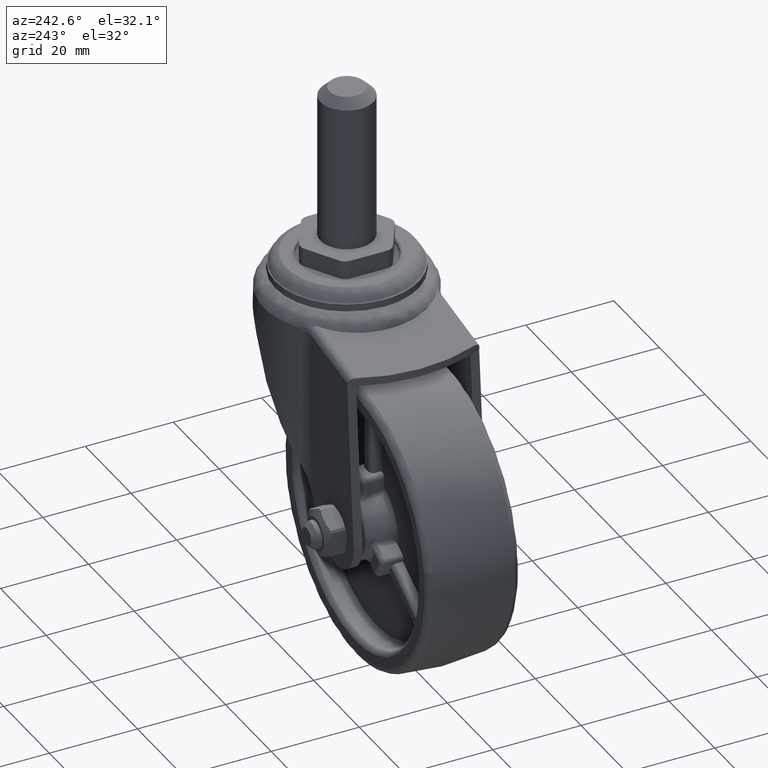
[diagram: clean part render]
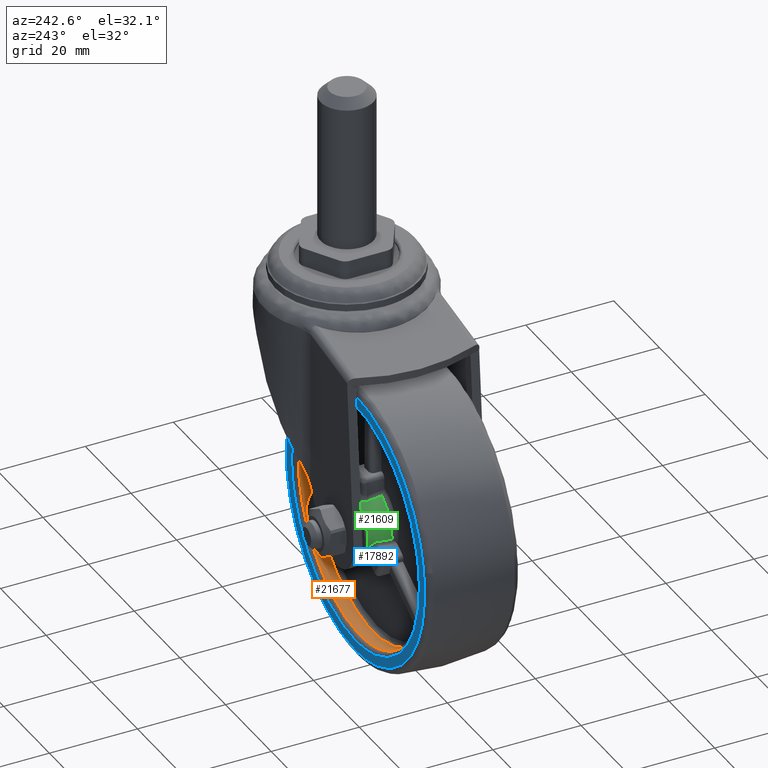
[diagram: same view with three faces highlighted in distinct colors, each labeled with its STEP entity id]
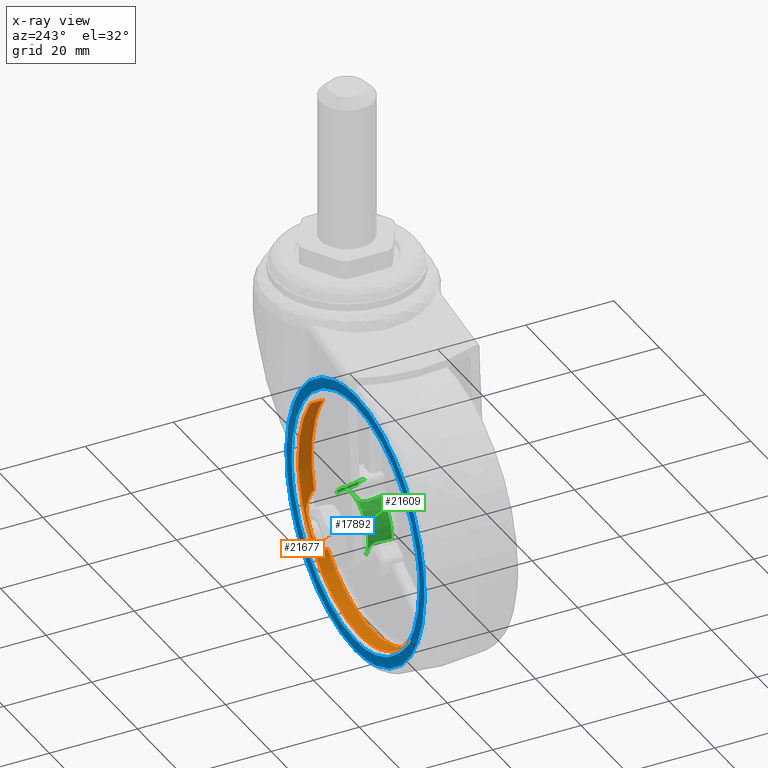
[diagram: x-ray of the same camera — body ghosted, the three highlighted faces saturated]
A machine part, auxiliary view with three faces highlighted in distinct colors.
The next image is the same camera in x-ray (body ghosted, the three faces saturated) — at least one of them is partly hidden behind the body in this view.
Their STEP definitions:

[orange] entity #21677 — the highlighted face is a freeform B-spline surface patch.
#18010=CARTESIAN_POINT('',(-21.729602883362020,9.500000002187065,-16.025740498690709));
#18011=VERTEX_POINT('',#18010);
#18027=CARTESIAN_POINT('',(0.0,9.500000000000000,-27.0));
#18028=VERTEX_POINT('',#18027);
#18029=CARTESIAN_POINT('',(-21.729602883362020,9.500000002187065,-16.025740498690705));
#18030=CARTESIAN_POINT('',(-13.636006517276037,9.500000000906182,-26.999999999999950));
#18031=CARTESIAN_POINT('',(0.0,9.500000000000000,-27.0));
#18039=(BOUNDED_CURVE()B_SPLINE_CURVE(2,(#18029,#18030,#18031),.UNSPECIFIED.,.F.,.U.)B_SPLINE_CURVE_WITH_KNOTS((3,3),(0.852333250933446,1.0),.UNSPECIFIED.)CURVE()GEOMETRIC_REPRESENTATION_ITEM()RATIONAL_B_SPLINE_CURVE((0.858368850471082,0.826997642216715,1.0))REPRESENTATION_ITEM(''));
#18040=EDGE_CURVE('',#18011,#18028,#18039,.T.);
#18042=CARTESIAN_POINT('',(26.997868193501748,9.500000003678203,-0.339283076952813));
#18043=VERTEX_POINT('',#18042);
#18044=CARTESIAN_POINT('',(0.0,9.500000000000000,-27.0));
#18045=CARTESIAN_POINT('',(26.662822107396440,9.500000001839101,-26.999999999999996));
#18046=CARTESIAN_POINT('',(26.997868193501748,9.500000003678203,-0.339283076952813));
#18054=(BOUNDED_CURVE()B_SPLINE_CURVE(2,(#18044,#18045,#18046),.UNSPECIFIED.,.F.,.U.)B_SPLINE_CURVE_WITH_KNOTS((3,3),(0.0,0.247784295921062),.UNSPECIFIED.)CURVE()GEOMETRIC_REPRESENTATION_ITEM()RATIONAL_B_SPLINE_CURVE((1.0,0.709702639985021,0.994854295642479))REPRESENTATION_ITEM(''));
#18055=EDGE_CURVE('',#18028,#18043,#18054,.T.);
#18100=CARTESIAN_POINT('',(21.729603033525908,9.500000002203374,16.025740295080620));
#18101=VERTEX_POINT('',#18100);
#18102=CARTESIAN_POINT('',(26.997868193501748,9.500000003678203,-0.339283076952813));
#18103=CARTESIAN_POINT('',(26.999999999999996,9.500000003666738,-0.169648235832177));
#18104=CARTESIAN_POINT('',(26.999999999999989,9.500000003655128,-7.233833E-016));
#18105=CARTESIAN_POINT('',(26.999999999999915,9.500000003047468,8.879509805763906));
#18106=CARTESIAN_POINT('',(21.729603033525908,9.500000002203374,16.025740295080624));
#18114=(BOUNDED_CURVE()B_SPLINE_CURVE(2,(#18102,#18103,#18104,#18105,#18106),.UNSPECIFIED.,.F.,.U.)B_SPLINE_CURVE_WITH_KNOTS((3,2,3),(0.247784295921062,0.250000000000000,0.352333249511620),.UNSPECIFIED.)CURVE()GEOMETRIC_REPRESENTATION_ITEM()RATIONAL_B_SPLINE_CURVE((0.994854295642479,0.997404141201527,1.0,0.880109140635605,0.858368851075204))REPRESENTATION_ITEM(''));
#18115=EDGE_CURVE('',#18043,#18101,#18114,.T.);
#18604=CARTESIAN_POINT('',(-19.775754477459650,6.500000000000000,-18.382587816932499));
#18605=VERTEX_POINT('',#18604);
#18655=CARTESIAN_POINT('',(19.775746493644750,6.500000000000000,-18.382592607123751));
#18656=VERTEX_POINT('',#18655);
#18688=CARTESIAN_POINT('',(-19.775754477459650,6.500000000000000,-18.382587816932499));
#18689=CARTESIAN_POINT('',(-18.516913265081499,6.499999999999993,-19.737256627244530));
#18690=CARTESIAN_POINT('',(-16.243790912241899,6.500000000000008,-21.726908366354291));
#18691=CARTESIAN_POINT('',(-12.891242668102770,6.500000000000000,-23.792483002903779));
#18692=CARTESIAN_POINT('',(-9.849908411726331,6.499999999999989,-25.211811183754630));
#18693=CARTESIAN_POINT('',(-6.819981053291165,6.500000000000010,-26.197877950632169));
#18694=CARTESIAN_POINT('',(-3.239045934259169,6.499999999999991,-26.884405642690300));
#18695=CARTESIAN_POINT('',(0.695705631955457,6.500000000000040,-27.112195812597999));
#18696=CARTESIAN_POINT('',(4.848769515196429,6.499999999999861,-26.670475436309239));
#18697=CARTESIAN_POINT('',(8.319093552807333,6.500000000000409,-25.746993006795240));
#18698=CARTESIAN_POINT('',(11.552044385932270,6.499999999999756,-24.484061743049072));
#18699=CARTESIAN_POINT('',(15.474878219554220,6.500000000000252,-22.353343365267431));
#18700=CARTESIAN_POINT('',(18.280982030470451,6.499999999999909,-19.991398267899189));
#18701=CARTESIAN_POINT('',(19.775746493644750,6.500000000000000,-18.382592607123751));
#18702=B_SPLINE_CURVE_WITH_KNOTS('',3,(#18688,#18689,#18690,#18691,#18692,#18693,#18694,#18695,#18696,#18697,#18698,#18699,#18700,#18701),.UNSPECIFIED.,.F.,.U.,(4,1,1,1,1,1,1,1,1,1,1,4),(0.000000078928899,5.547751425199351,9.015131694738329,11.789036154244810,15.603136088926121,18.550398971588741,22.711194548025869,27.392135171767059,31.032892653931391,33.460048046666067,37.794256695975513,44.382238997541407),.UNSPECIFIED.);
#18703=EDGE_CURVE('',#18605,#18656,#18702,.T.);
#18752=CARTESIAN_POINT('',(24.314308815177551,9.0,-11.739437245463639));
#18753=VERTEX_POINT('',#18752);
#18767=CARTESIAN_POINT('',(25.807665603181150,7.0,-7.935011948771430));
#18768=VERTEX_POINT('',#18767);
#18796=CARTESIAN_POINT('',(24.314308815177551,9.0,-11.739437245463639));
#18797=CARTESIAN_POINT('',(24.399355218980400,9.000000000000004,-11.563292160299889));
#18798=CARTESIAN_POINT('',(24.481466017697240,8.983607666412324,-11.388345430880690));
#18799=CARTESIAN_POINT('',(24.600638036807691,8.938086873005625,-11.127342804351770));
#18800=CARTESIAN_POINT('',(24.639694319177028,8.919399489301833,-11.040581137132699));
#18801=CARTESIAN_POINT('',(24.716521885995359,8.875391763134990,-10.867498084407460));
#18802=CARTESIAN_POINT('',(24.754407984937391,8.849971205522101,-10.780906840890310));
#18803=CARTESIAN_POINT('',(24.938755386857029,8.708700494791364,-10.353602865272499));
#18804=CARTESIAN_POINT('',(25.070955416587012,8.550824701972886,-10.028012815873380));
#18805=CARTESIAN_POINT('',(25.222679369110750,8.315598230912480,-9.634498946607698));
#18806=CARTESIAN_POINT('',(25.252338427428501,8.266637154999668,-9.556476897060920));
#18807=CARTESIAN_POINT('',(25.310395721720489,8.165294126469151,-9.401633684380110));
#18808=CARTESIAN_POINT('',(25.338820277539700,8.112855889945795,-9.324738341141336));
#18809=CARTESIAN_POINT('',(25.421970146868819,7.951828717158793,-9.096682600035335));
#18810=CARTESIAN_POINT('',(25.474702192052099,7.839334756970777,-8.947830984093642));
#18811=CARTESIAN_POINT('',(25.575946242674231,7.607452488573166,-8.654195886318506));
#18812=CARTESIAN_POINT('',(25.624456924708010,7.488060711746101,-8.509414721846373));
#18813=CARTESIAN_POINT('',(25.694811045521330,7.306350593197275,-8.293517406220266));
#18814=CARTESIAN_POINT('',(25.729383293559120,7.214840722985306,-8.185886094907787));
#18815=CARTESIAN_POINT('',(25.763173013217521,7.122832293255115,-8.078387423804527));
#18816=CARTESIAN_POINT('',(25.779946684632709,7.076784227081213,-8.024632035429910));
#18817=CARTESIAN_POINT('',(25.785517776739539,7.061427823512048,-8.006712378722718));
#18818=CARTESIAN_POINT('',(25.796620236787081,7.030703090561548,-7.970869129579667));
#18819=CARTESIAN_POINT('',(25.802130216273760,7.015203882985929,-7.953015118432671));
#18820=CARTESIAN_POINT('',(25.807665603181150,7.0,-7.935011948771430));
#18821=B_SPLINE_CURVE_WITH_KNOTS('',3,(#18796,#18797,#18798,#18799,#18800,#18801,#18802,#18803,#18804,#18805,#18806,#18807,#18808,#18809,#18810,#18811,#18812,#18813,#18814,#18815,#18816,#18817,#18818,#18819,#18820),.UNSPECIFIED.,.F.,.U.,(4,2,2,2,2,2,2,2,2,1,2,2,4),(0.0,0.125000000000000,0.187500000000001,0.250000000000001,0.500000000000005,0.562500000000005,0.625000000000006,0.750000000000005,0.875000000000005,0.937500000000004,0.968750000000003,0.984375000000001,1.0),.UNSPECIFIED.);
#18822=EDGE_CURVE('',#18753,#18768,#18821,.T.);
#18844=CARTESIAN_POINT('',(22.323799195099799,9.0,-15.187099443174150));
#18845=VERTEX_POINT('',#18844);
#18861=CARTESIAN_POINT('',(22.323799195099809,9.0,-15.187099443174169));
#18862=CARTESIAN_POINT('',(23.446486003740581,9.0,-13.536841277099647));
#18863=CARTESIAN_POINT('',(24.314308815177551,9.0,-11.739437245463661));
#18871=(BOUNDED_CURVE()B_SPLINE_CURVE(2,(#18861,#18862,#18863),.UNSPECIFIED.,.F.,.U.)CURVE()GEOMETRIC_REPRESENTATION_ITEM()QUASI_UNIFORM_CURVE()RATIONAL_B_SPLINE_CURVE((1.0,0.997278790104865,1.0))REPRESENTATION_ITEM(''));
#18872=EDGE_CURVE('',#18845,#18753,#18871,.T.);
#18939=CARTESIAN_POINT('',(19.775746493644750,7.0,-18.382592607123751));
#18940=VERTEX_POINT('',#18939);
#18941=CARTESIAN_POINT('',(19.775746493644750,7.0,-18.382592607123751));
#18942=CARTESIAN_POINT('',(19.777270170167888,7.002036282938575,-18.380953458783420));
#18943=CARTESIAN_POINT('',(19.778793642879609,7.004072565856359,-18.379314121020911));
#18944=CARTESIAN_POINT('',(19.781840180680081,7.008145131650335,-18.376035066651369));
#18945=CARTESIAN_POINT('',(19.783532376566860,7.009888629423941,-18.374213266367509));
#18946=CARTESIAN_POINT('',(19.788390865808339,7.015512242728152,-18.368981209090212));
#18947=CARTESIAN_POINT('',(19.791593801458429,7.019329684852770,-18.365530164055141));
#18948=CARTESIAN_POINT('',(19.801199669578370,7.030782367243396,-18.355174804376130));
#18949=CARTESIAN_POINT('',(19.807582358942739,7.038451631034683,-18.348286880039289));
#18950=CARTESIAN_POINT('',(19.826720777657702,7.061456739943341,-18.327611934075971));
#18951=CARTESIAN_POINT('',(19.839457984750290,7.076807167980160,-18.313823286558161));
#18952=CARTESIAN_POINT('',(19.877636296851730,7.122837305745312,-18.272406835348281));
#18953=CARTESIAN_POINT('',(19.903039652717808,7.153504539307927,-18.244733331088121));
#18954=CARTESIAN_POINT('',(19.979157133070299,7.245340462239780,-18.161464941941180));
#18955=CARTESIAN_POINT('',(20.029776752504880,7.306347611588489,-18.105624752446140));
#18956=CARTESIAN_POINT('',(20.181580144033958,7.488059042325476,-17.936739527247031));
#18957=CARTESIAN_POINT('',(20.282712553291589,7.607453608902942,-17.822333744603942));
#18958=CARTESIAN_POINT('',(20.486391667297639,7.839339367189134,-17.587830360671720));
#18959=CARTESIAN_POINT('',(20.588936843483229,7.951834384106368,-17.467735258762250));
#18960=CARTESIAN_POINT('',(20.744865047462149,8.112861335635865,-17.281696593189970));
#18961=CARTESIAN_POINT('',(20.797246046749901,8.165299122510541,-17.218632711969580));
#18962=CARTESIAN_POINT('',(20.902315591180251,8.266641460812572,-17.090932229386130));
#18963=CARTESIAN_POINT('',(20.955055148856971,8.315602219014750,-17.026235825406669));
#18964=CARTESIAN_POINT('',(21.219986199604989,8.550827207452624,-16.698082732792368));
#18965=CARTESIAN_POINT('',(21.435855365556382,8.708702129388081,-16.420799772198919));
#18966=CARTESIAN_POINT('',(21.713737603107312,8.849972050085388,-16.047499223170099));
#18967=CARTESIAN_POINT('',(21.769784727002971,8.875392462414405,-15.971393490755309));
#18968=CARTESIAN_POINT('',(21.881265175427998,8.919399939216984,-15.818317774288120));
#18969=CARTESIAN_POINT('',(21.936874797078509,8.938087218152241,-15.741113428687150));
#18970=CARTESIAN_POINT('',(22.103323555632571,8.983607757218717,-15.507406792346160));
#18971=CARTESIAN_POINT('',(22.213776374727740,9.000000000000002,-15.348823852780979));
#18972=CARTESIAN_POINT('',(22.323799195099799,9.0,-15.187099443174150));
#18973=B_SPLINE_CURVE_WITH_KNOTS('',3,(#18941,#18942,#18943,#18944,#18945,#18946,#18947,#18948,#18949,#18950,#18951,#18952,#18953,#18954,#18955,#18956,#18957,#18958,#18959,#18960,#18961,#18962,#18963,#18964,#18965,#18966,#18967,#18968,#18969,#18970,#18971,#18972),.UNSPECIFIED.,.F.,.U.,(4,2,2,2,2,2,2,2,2,2,2,2,2,2,2,4),(0.0,0.001953125000000,0.003906250000001,0.007812500000000,0.015625000000001,0.031250000000000,0.062499999999999,0.125000000000000,0.249999999999999,0.374999999999998,0.437499999999997,0.499999999999997,0.749999999999997,0.812499999999998,0.874999999999999,1.0),.UNSPECIFIED.);
#18974=EDGE_CURVE('',#18940,#18845,#18973,.T.);
#20889=CARTESIAN_POINT('',(-19.775754477459650,7.0,-18.382587816932499));
#20890=VERTEX_POINT('',#20889);
#20891=CARTESIAN_POINT('',(-19.775754477459650,6.500000000000000,-18.382587816932499));
#20892=CARTESIAN_POINT('',(-19.775754477459650,7.0,-18.382587816932499));
#20893=QUASI_UNIFORM_CURVE('',1,(#20891,#20892),.UNSPECIFIED.,.F.,.U.);
#20894=EDGE_CURVE('',#18605,#20890,#20893,.T.);
#20987=CARTESIAN_POINT('',(19.775746493644750,6.500000000000000,-18.382592607123751));
#20988=CARTESIAN_POINT('',(19.775746493644750,7.0,-18.382592607123751));
#20989=QUASI_UNIFORM_CURVE('',1,(#20987,#20988),.UNSPECIFIED.,.F.,.U.);
#20990=EDGE_CURVE('',#18656,#18940,#20989,.T.);
#21023=CARTESIAN_POINT('',(25.807665603181150,6.500000000000000,-7.935011948771430));
#21024=VERTEX_POINT('',#21023);
#21025=CARTESIAN_POINT('',(25.807665603181150,6.500000000000000,-7.935011948771430));
#21026=CARTESIAN_POINT('',(25.807665603181150,7.0,-7.935011948771430));
#21027=QUASI_UNIFORM_CURVE('',1,(#21025,#21026),.UNSPECIFIED.,.F.,.U.);
#21028=EDGE_CURVE('',#21024,#18768,#21027,.T.);
#21357=CARTESIAN_POINT('',(21.729613001984241,6.500000000000000,16.025725899453430));
#21358=VERTEX_POINT('',#21357);
#21372=CARTESIAN_POINT('',(25.807665603181150,6.500000000000000,-7.935011948771430));
#21373=CARTESIAN_POINT('',(29.265397258880220,6.500000000000001,3.310841253797977));
#21374=CARTESIAN_POINT('',(23.382688385328340,6.499999999999999,13.499995090683599));
#21375=CARTESIAN_POINT('',(22.626855543391351,6.500000000000000,14.809136383751971));
#21376=CARTESIAN_POINT('',(21.729613001984237,6.500000000000001,16.025725899453427));
#21384=(BOUNDED_CURVE()B_SPLINE_CURVE(2,(#21372,#21373,#21374,#21375,#21376),.UNSPECIFIED.,.F.,.U.)B_SPLINE_CURVE_WITH_KNOTS((3,2,3),(0.0,0.500000000000000,0.569267954330602),.UNSPECIFIED.)CURVE()GEOMETRIC_REPRESENTATION_ITEM()RATIONAL_B_SPLINE_CURVE((1.0,0.916743341161455,1.0,0.988465963115706,0.980127682792008))REPRESENTATION_ITEM(''));
#21385=EDGE_CURVE('',#21024,#21358,#21384,.T.);
#21610=CARTESIAN_POINT('',(-21.729601091821682,9.575000003770159,-16.025742927873939));
#21611=CARTESIAN_POINT('',(-5.703858163947746,9.575000003770159,-37.755344019695606));
#21612=CARTESIAN_POINT('',(16.025742927873939,9.575000003770159,-21.729601091821682));
#21613=CARTESIAN_POINT('',(37.755344019695606,9.575000003770159,-5.703858163947746));
#21614=CARTESIAN_POINT('',(21.729601091821682,9.575000003770159,16.025742927873939));
#21615=CARTESIAN_POINT('',(-21.729601091821682,6.423124999905745,-16.025742927873939));
#21616=CARTESIAN_POINT('',(-5.703858163947746,6.423124999905745,-37.755344019695606));
#21617=CARTESIAN_POINT('',(16.025742927873939,6.423124999905745,-21.729601091821682));
#21618=CARTESIAN_POINT('',(37.755344019695606,6.423124999905745,-5.703858163947746));
#21619=CARTESIAN_POINT('',(21.729601091821682,6.423124999905745,16.025742927873939));
#21627=(BOUNDED_SURFACE()B_SPLINE_SURFACE(2,1,((#21610,#21615),(#21611,#21616),(#21612,#21617),(#21613,#21618),(#21614,#21619)),.UNSPECIFIED.,.F.,.F.,.U.)B_SPLINE_SURFACE_WITH_KNOTS((3,2,3),(2,2),(0.0,44.735064736294248,89.470129472588496),(0.0,3.151875003864413),.UNSPECIFIED.)GEOMETRIC_REPRESENTATION_ITEM()RATIONAL_B_SPLINE_SURFACE(((1.0,1.0),(0.707106781186548,0.707106781186548),(1.0,1.0),(0.707106781186548,0.707106781186548),(1.0,1.0)))REPRESENTATION_ITEM('')SURFACE());
#21628=ORIENTED_EDGE('',*,*,#18040,.F.);
#21629=CARTESIAN_POINT('',(-21.729600777960091,8.856335298967757,-16.025742687776368));
#21630=VERTEX_POINT('',#21629);
#21631=CARTESIAN_POINT('',(-21.729602883362020,9.500000002187065,-16.025740498690709));
#21632=CARTESIAN_POINT('',(-21.729600777960091,8.856335298967757,-16.025742687776368));
#21633=QUASI_UNIFORM_CURVE('',1,(#21631,#21632),.UNSPECIFIED.,.F.,.U.);
#21634=EDGE_CURVE('',#18011,#21630,#21633,.T.);
#21635=ORIENTED_EDGE('',*,*,#21634,.T.);
#21636=CARTESIAN_POINT('',(-21.729600777960091,8.856335298967757,-16.025742687776368));
#21637=CARTESIAN_POINT('',(-21.705744012944649,8.845343482299576,-16.058090736199400));
#21638=CARTESIAN_POINT('',(-21.681912523266881,8.833788913246028,-16.090253932377159));
#21639=CARTESIAN_POINT('',(-21.435860985695800,8.708700502693738,-16.420794398330560));
#21640=CARTESIAN_POINT('',(-21.219991691528939,8.550824708895719,-16.698077962157221));
#21641=CARTESIAN_POINT('',(-20.955060590996069,8.315598236598541,-17.026231637421169));
#21642=CARTESIAN_POINT('',(-20.902321029314098,8.266637160437741,-17.090928148808100));
#21643=CARTESIAN_POINT('',(-20.797251492875610,8.165294131410146,-17.218628824163229));
#21644=CARTESIAN_POINT('',(-20.744870436172601,8.112855894637441,-17.281692871826898));
#21645=CARTESIAN_POINT('',(-20.588943263897061,7.951828721104488,-17.467730607499679));
#21646=CARTESIAN_POINT('',(-20.486399978045441,7.839334760420937,-17.587823683610811));
#21647=CARTESIAN_POINT('',(-20.282726494133801,7.607452491034636,-17.822321107307520));
#21648=CARTESIAN_POINT('',(-20.181597641265139,7.488060713714432,-17.936723150110151));
#21649=CARTESIAN_POINT('',(-20.029802100608350,7.306350594426796,-18.105600230225161));
#21650=CARTESIAN_POINT('',(-19.953876754244892,7.214840723845716,-18.189356314171739));
#21651=CARTESIAN_POINT('',(-19.877675013497932,7.122832293746288,-18.272368388570730));
#21652=CARTESIAN_POINT('',(-19.839508307020711,7.076784227387522,-18.313772499937730));
#21653=CARTESIAN_POINT('',(-19.826774971718109,7.061427823756868,-18.327557032789429));
#21654=CARTESIAN_POINT('',(-19.801285030589789,7.030703090682397,-18.355093664219989));
#21655=CARTESIAN_POINT('',(-19.788577989698268,7.015203883049092,-18.368792449212609));
#21656=CARTESIAN_POINT('',(-19.775754477459650,7.0,-18.382587816932499));
#21657=B_SPLINE_CURVE_WITH_KNOTS('',3,(#21636,#21637,#21638,#21639,#21640,#21641,#21642,#21643,#21644,#21645,#21646,#21647,#21648,#21649,#21650,#21651,#21652,#21653,#21654,#21655,#21656),.UNSPECIFIED.,.F.,.U.,(4,2,2,2,2,2,2,1,2,2,4),(0.223296302810165,0.250000000000002,0.499999999999999,0.562499999999999,0.624999999999999,0.749999999999999,0.874999999999999,0.937499999999999,0.968749999999999,0.984374999999999,1.0),.UNSPECIFIED.);
#21658=EDGE_CURVE('',#21630,#20890,#21657,.T.);
#21659=ORIENTED_EDGE('',*,*,#21658,.T.);
#21660=ORIENTED_EDGE('',*,*,#20894,.F.);
#21661=ORIENTED_EDGE('',*,*,#18703,.T.);
#21662=ORIENTED_EDGE('',*,*,#20990,.T.);
#21663=ORIENTED_EDGE('',*,*,#18974,.T.);
#21664=ORIENTED_EDGE('',*,*,#18872,.T.);
#21665=ORIENTED_EDGE('',*,*,#18822,.T.);
#21666=ORIENTED_EDGE('',*,*,#21028,.F.);
#21667=ORIENTED_EDGE('',*,*,#21385,.T.);
#21668=CARTESIAN_POINT('',(21.729603033525908,9.500000002203374,16.025740295080620));
#21669=CARTESIAN_POINT('',(21.729613001984241,6.500000000000000,16.025725899453430));
#21670=QUASI_UNIFORM_CURVE('',1,(#21668,#21669),.UNSPECIFIED.,.F.,.U.);
#21671=EDGE_CURVE('',#18101,#21358,#21670,.T.);
#21672=ORIENTED_EDGE('',*,*,#21671,.F.);
#21673=ORIENTED_EDGE('',*,*,#18115,.F.);
#21674=ORIENTED_EDGE('',*,*,#18055,.F.);
#21675=EDGE_LOOP('',(#21628,#21635,#21659,#21660,#21661,#21662,#21663,#21664,#21665,#21666,#21667,#21672,#21673,#21674));
#21676=FACE_OUTER_BOUND('',#21675,.T.);
#21677=ADVANCED_FACE('',(#21676),#21627,.F.);

[blue] entity #17892 — the highlighted face is a freeform B-spline surface patch.
#17690=CARTESIAN_POINT('',(29.900083902248909,10.500000000000000,-4.928482982731096));
#17691=VERTEX_POINT('',#17690);
#17692=CARTESIAN_POINT('',(0.0,10.500000000000000,30.303546999999998));
#17693=VERTEX_POINT('',#17692);
#17694=CARTESIAN_POINT('',(29.900083902248912,10.500000000000000,-4.928482982731096));
#17695=CARTESIAN_POINT('',(30.303547017150596,10.499999999999998,-2.480755954302982));
#17696=CARTESIAN_POINT('',(30.303547016423330,10.500000000000000,-2.707085E-009));
#17697=CARTESIAN_POINT('',(30.303547007539432,10.499999999999998,30.303546998757266));
#17698=CARTESIAN_POINT('',(0.0,10.500000000000000,30.303546999999998));
#17706=(BOUNDED_CURVE()B_SPLINE_CURVE(2,(#17694,#17695,#17696,#17697,#17698),.UNSPECIFIED.,.F.,.U.)B_SPLINE_CURVE_WITH_KNOTS((3,2,3),(0.222006108797415,0.250000000000000,0.500000000000000),.UNSPECIFIED.)CURVE()GEOMETRIC_REPRESENTATION_ITEM()RATIONAL_B_SPLINE_CURVE((0.941751131920037,0.967203116394245,1.0,0.707106781186547,1.0))REPRESENTATION_ITEM(''));
#17707=EDGE_CURVE('',#17691,#17693,#17706,.T.);
#17709=CARTESIAN_POINT('',(-29.900083902248909,10.500000000000000,4.928482982731095));
#17710=VERTEX_POINT('',#17709);
#17711=CARTESIAN_POINT('',(0.0,10.500000000000000,30.303546999999998));
#17712=CARTESIAN_POINT('',(-25.717467830543555,10.500000000000002,30.303547001464352));
#17713=CARTESIAN_POINT('',(-29.900083902248916,10.500000000000000,4.928482982731095));
#17721=(BOUNDED_CURVE()B_SPLINE_CURVE(2,(#17711,#17712,#17713),.UNSPECIFIED.,.F.,.U.)B_SPLINE_CURVE_WITH_KNOTS((3,3),(0.500000000000000,0.722006108797415),.UNSPECIFIED.)CURVE()GEOMETRIC_REPRESENTATION_ITEM()RATIONAL_B_SPLINE_CURVE((1.0,0.739903664792302,0.941751131920037))REPRESENTATION_ITEM(''));
#17722=EDGE_CURVE('',#17693,#17710,#17721,.T.);
#17778=CARTESIAN_POINT('',(0.0,10.500000000000000,-30.303546999999998));
#17779=VERTEX_POINT('',#17778);
#17780=CARTESIAN_POINT('',(0.0,10.500000000000000,-30.303546999999998));
#17781=CARTESIAN_POINT('',(25.717467830543537,10.499999999999998,-30.303547001464349));
#17782=CARTESIAN_POINT('',(29.900083902248909,10.500000000000000,-4.928482982731096));
#17790=(BOUNDED_CURVE()B_SPLINE_CURVE(2,(#17780,#17781,#17782),.UNSPECIFIED.,.F.,.U.)B_SPLINE_CURVE_WITH_KNOTS((3,3),(0.0,0.222006108797415),.UNSPECIFIED.)CURVE()GEOMETRIC_REPRESENTATION_ITEM()RATIONAL_B_SPLINE_CURVE((1.0,0.739903664792303,0.941751131920037))REPRESENTATION_ITEM(''));
#17791=EDGE_CURVE('',#17779,#17691,#17790,.T.);
#17797=CARTESIAN_POINT('',(-29.900083902248916,10.500000000000000,4.928482982731095));
#17798=CARTESIAN_POINT('',(-30.303547017150603,10.499999999999996,2.480755954302986));
#17799=CARTESIAN_POINT('',(-30.303547016423330,10.500000000000000,2.707094E-009));
#17800=CARTESIAN_POINT('',(-30.303547007539432,10.500000000000000,-30.303546998757266));
#17801=CARTESIAN_POINT('',(0.0,10.500000000000000,-30.303546999999998));
#17809=(BOUNDED_CURVE()B_SPLINE_CURVE(2,(#17797,#17798,#17799,#17800,#17801),.UNSPECIFIED.,.F.,.U.)B_SPLINE_CURVE_WITH_KNOTS((3,2,3),(0.722006108797415,0.750000000000000,1.0),.UNSPECIFIED.)CURVE()GEOMETRIC_REPRESENTATION_ITEM()RATIONAL_B_SPLINE_CURVE((0.941751131920037,0.967203116394245,1.0,0.707106781186547,1.0))REPRESENTATION_ITEM(''));
#17810=EDGE_CURVE('',#17710,#17779,#17809,.T.);
#17815=CARTESIAN_POINT('',(-33.329187749935727,10.500000000000000,-33.330871227831693));
#17816=CARTESIAN_POINT('',(-33.329187749935727,10.500000000000000,33.330872853440631));
#17817=CARTESIAN_POINT('',(33.329189375462583,10.500000000000000,-33.330871227831693));
#17818=CARTESIAN_POINT('',(33.329189375462583,10.500000000000000,33.330872853440631));
#17819=B_SPLINE_SURFACE_WITH_KNOTS('',1,1,((#17815,#17817),(#17816,#17818)),.UNSPECIFIED.,.F.,.F.,.U.,(2,2),(2,2),(0.0,66.661744081272332),(0.0,66.658377125398303),.UNSPECIFIED.);
#17820=ORIENTED_EDGE('',*,*,#17810,.F.);
#17821=ORIENTED_EDGE('',*,*,#17722,.F.);
#17822=ORIENTED_EDGE('',*,*,#17707,.F.);
#17823=ORIENTED_EDGE('',*,*,#17791,.F.);
#17824=EDGE_LOOP('',(#17820,#17821,#17822,#17823));
#17825=FACE_OUTER_BOUND('',#17824,.T.);
#17826=CARTESIAN_POINT('',(0.0,10.500000000000000,-28.0));
#17827=VERTEX_POINT('',#17826);
#17828=CARTESIAN_POINT('',(27.997789230788658,10.500000000000000,-0.351849116999347));
#17829=VERTEX_POINT('',#17828);
#17830=CARTESIAN_POINT('',(0.0,10.500000000000000,-28.0));
#17831=CARTESIAN_POINT('',(27.650334033599904,10.499999999999998,-27.999999999956550));
#17832=CARTESIAN_POINT('',(27.997789230788658,10.500000000000000,-0.351849116999347));
#17840=(BOUNDED_CURVE()B_SPLINE_CURVE(2,(#17830,#17831,#17832),.UNSPECIFIED.,.F.,.U.)B_SPLINE_CURVE_WITH_KNOTS((3,3),(0.0,0.247784295919515),.UNSPECIFIED.)CURVE()GEOMETRIC_REPRESENTATION_ITEM()RATIONAL_B_SPLINE_CURVE((1.0,0.709702639986833,0.994854295638918))REPRESENTATION_ITEM(''));
#17841=EDGE_CURVE('',#17827,#17829,#17840,.T.);
#17842=ORIENTED_EDGE('',*,*,#17841,.T.);
#17843=CARTESIAN_POINT('',(0.0,10.500000000000000,28.0));
#17844=VERTEX_POINT('',#17843);
#17845=CARTESIAN_POINT('',(27.997789230788658,10.500000000000000,-0.351849116999347));
#17846=CARTESIAN_POINT('',(27.999999993107686,10.499999999999998,-0.175931503862499));
#17847=CARTESIAN_POINT('',(27.999999993129411,10.500000000000000,8.634036E-011));
#17848=CARTESIAN_POINT('',(27.999999996586290,10.500000000000000,28.000000000042895));
#17849=CARTESIAN_POINT('',(0.0,10.500000000000000,28.0));
#17857=(BOUNDED_CURVE()B_SPLINE_CURVE(2,(#17845,#17846,#17847,#17848,#17849),.UNSPECIFIED.,.F.,.U.)B_SPLINE_CURVE_WITH_KNOTS((3,2,3),(0.247784295919515,0.250000000000000,0.500000000000000),.UNSPECIFIED.)CURVE()GEOMETRIC_REPRESENTATION_ITEM()RATIONAL_B_SPLINE_CURVE((0.994854295638918,0.997404141199714,1.0,0.707106781186547,1.0))REPRESENTATION_ITEM(''));
#17858=EDGE_CURVE('',#17829,#17844,#17857,.T.);
#17859=ORIENTED_EDGE('',*,*,#17858,.T.);
#17860=CARTESIAN_POINT('',(-27.997789230788658,10.500000000000000,0.351849116999345));
#17861=VERTEX_POINT('',#17860);
#17862=CARTESIAN_POINT('',(0.0,10.500000000000000,28.0));
#17863=CARTESIAN_POINT('',(-27.650334033599904,10.500000000000000,27.999999999956550));
#17864=CARTESIAN_POINT('',(-27.997789230788658,10.500000000000000,0.351849116999345));
#17872=(BOUNDED_CURVE()B_SPLINE_CURVE(2,(#17862,#17863,#17864),.UNSPECIFIED.,.F.,.U.)B_SPLINE_CURVE_WITH_KNOTS((3,3),(0.500000000000000,0.747784295919515),.UNSPECIFIED.)CURVE()GEOMETRIC_REPRESENTATION_ITEM()RATIONAL_B_SPLINE_CURVE((1.0,0.709702639986833,0.994854295638918))REPRESENTATION_ITEM(''));
#17873=EDGE_CURVE('',#17844,#17861,#17872,.T.);
#17874=ORIENTED_EDGE('',*,*,#17873,.T.);
#17875=CARTESIAN_POINT('',(-27.997789230788658,10.500000000000000,0.351849116999345));
#17876=CARTESIAN_POINT('',(-27.999999993107686,10.499999999999998,0.175931503862500));
#17877=CARTESIAN_POINT('',(-27.999999993129411,10.500000000000000,-8.633755E-011));
#17878=CARTESIAN_POINT('',(-27.999999996586290,10.499999999999998,-28.000000000042895));
#17879=CARTESIAN_POINT('',(0.0,10.500000000000000,-28.0));
#17887=(BOUNDED_CURVE()B_SPLINE_CURVE(2,(#17875,#17876,#17877,#17878,#17879),.UNSPECIFIED.,.F.,.U.)B_SPLINE_CURVE_WITH_KNOTS((3,2,3),(0.747784295919515,0.750000000000000,1.0),.UNSPECIFIED.)CURVE()GEOMETRIC_REPRESENTATION_ITEM()RATIONAL_B_SPLINE_CURVE((0.994854295638918,0.997404141199714,1.0,0.707106781186547,1.0))REPRESENTATION_ITEM(''));
#17888=EDGE_CURVE('',#17861,#17827,#17887,.T.);
#17889=ORIENTED_EDGE('',*,*,#17888,.T.);
#17890=EDGE_LOOP('',(#17842,#17859,#17874,#17889));
#17891=FACE_BOUND('',#17890,.T.);
#17892=ADVANCED_FACE('',(#17825,#17891),#17819,.T.);

[green] entity #21609 — the highlighted face is a freeform B-spline surface patch.
#18174=CARTESIAN_POINT('',(-7.497840346776039,11.551014472499920,0.851619890978279));
#18175=VERTEX_POINT('',#18174);
#18189=CARTESIAN_POINT('',(0.0,11.551014469798560,7.546049715489152));
#18190=VERTEX_POINT('',#18189);
#18191=CARTESIAN_POINT('',(0.0,11.551014469798560,7.546049715489152));
#18192=CARTESIAN_POINT('',(-6.737473450099667,11.551014471149239,7.546049715473520));
#18193=CARTESIAN_POINT('',(-7.497840346776039,11.551014472499920,0.851619890978279));
#18201=(BOUNDED_CURVE()B_SPLINE_CURVE(2,(#18191,#18192,#18193),.UNSPECIFIED.,.F.,.U.)B_SPLINE_CURVE_WITH_KNOTS((3,3),(0.500000000000000,0.730444236555655),.UNSPECIFIED.)CURVE()GEOMETRIC_REPRESENTATION_ITEM()RATIONAL_B_SPLINE_CURVE((1.0,0.730017783192822,0.957762333071512))REPRESENTATION_ITEM(''));
#18202=EDGE_CURVE('',#18190,#18175,#18201,.T.);
#18204=CARTESIAN_POINT('',(6.556651409395380,11.551014471523390,3.735396712786382));
#18205=VERTEX_POINT('',#18204);
#18206=CARTESIAN_POINT('',(6.556651409395380,11.551014471523386,3.735396712786381));
#18207=CARTESIAN_POINT('',(4.385680313033787,11.551014470496904,7.546049715493164));
#18208=CARTESIAN_POINT('',(0.0,11.551014469798560,7.546049715489152));
#18216=(BOUNDED_CURVE()B_SPLINE_CURVE(2,(#18206,#18207,#18208),.UNSPECIFIED.,.F.,.U.)B_SPLINE_CURVE_WITH_KNOTS((3,3),(0.334387612167688,0.500000000000000),.UNSPECIFIED.)CURVE()GEOMETRIC_REPRESENTATION_ITEM()RATIONAL_B_SPLINE_CURVE((0.869012210754911,0.805973018609649,1.0))REPRESENTATION_ITEM(''));
#18217=EDGE_CURVE('',#18205,#18190,#18216,.T.);
#18292=CARTESIAN_POINT('',(-6.556651409395380,11.551014471523390,-3.735396712786379));
#18293=VERTEX_POINT('',#18292);
#18307=CARTESIAN_POINT('',(-7.497840346776039,11.551014472499920,0.851619890978279));
#18308=CARTESIAN_POINT('',(-7.546049715219570,11.551014472431213,0.427174488054221));
#18309=CARTESIAN_POINT('',(-7.546049715226076,11.551014472354300,-2.814588E-011));
#18310=CARTESIAN_POINT('',(-7.546049715256517,11.551014471994419,-1.998729821469673));
#18311=CARTESIAN_POINT('',(-6.556651409395380,11.551014471523386,-3.735396712786379));
#18319=(BOUNDED_CURVE()B_SPLINE_CURVE(2,(#18307,#18308,#18309,#18310,#18311),.UNSPECIFIED.,.F.,.U.)B_SPLINE_CURVE_WITH_KNOTS((3,2,3),(0.730444236555655,0.750000000000000,0.834387612167688),.UNSPECIFIED.)CURVE()GEOMETRIC_REPRESENTATION_ITEM()RATIONAL_B_SPLINE_CURVE((0.957762333071512,0.977088997993726,1.0,0.901133762576899,0.869012210754911))REPRESENTATION_ITEM(''));
#18320=EDGE_CURVE('',#18175,#18293,#18319,.T.);
#19278=CARTESIAN_POINT('',(-7.251001664647510,11.397971060402700,-2.145456779367295));
#19279=VERTEX_POINT('',#19278);
#19293=CARTESIAN_POINT('',(-6.570290102976895,11.397971060402689,-3.743166827110150));
#19294=VERTEX_POINT('',#19293);
#19295=CARTESIAN_POINT('',(-6.570290102976895,11.397971060402689,-3.743166827110150));
#19296=CARTESIAN_POINT('',(-7.002991716588769,11.397971060402703,-2.983656161204021));
#19297=CARTESIAN_POINT('',(-7.251001664647512,11.397971060402700,-2.145456779367295));
#19305=(BOUNDED_CURVE()B_SPLINE_CURVE(2,(#19295,#19296,#19297),.UNSPECIFIED.,.F.,.U.)B_SPLINE_CURVE_WITH_KNOTS((3,3),(0.512126208233459,1.0),.UNSPECIFIED.)CURVE()GEOMETRIC_REPRESENTATION_ITEM()RATIONAL_B_SPLINE_CURVE((0.986157746769572,0.986485505908616,1.0))REPRESENTATION_ITEM(''));
#19306=EDGE_CURVE('',#19294,#19279,#19305,.T.);
#21203=CARTESIAN_POINT('',(7.015872617355864,6.397971060402620,3.997020106101270));
#21204=VERTEX_POINT('',#21203);
#21218=CARTESIAN_POINT('',(3.561256256973595,6.397971060402620,7.246798754188510));
#21219=VERTEX_POINT('',#21218);
#21220=CARTESIAN_POINT('',(7.015872617355864,6.397971060402620,3.997020106101270));
#21221=CARTESIAN_POINT('',(5.787804892067143,6.397971060402621,6.152617650621923));
#21222=CARTESIAN_POINT('',(3.561256256973594,6.397971060402620,7.246798754188506));
#21230=(BOUNDED_CURVE()B_SPLINE_CURVE(2,(#21220,#21221,#21222),.UNSPECIFIED.,.F.,.U.)B_SPLINE_CURVE_WITH_KNOTS((3,3),(0.495274320238429,1.0),.UNSPECIFIED.)CURVE()GEOMETRIC_REPRESENTATION_ITEM()RATIONAL_B_SPLINE_CURVE((0.915357226727896,0.914549604316901,1.0))REPRESENTATION_ITEM(''));
#21231=EDGE_CURVE('',#21204,#21219,#21230,.T.);
#21411=CARTESIAN_POINT('',(6.556651409395380,11.551014471523390,3.735396712786382));
#21412=CARTESIAN_POINT('',(7.015872617355864,6.397971060402620,3.997020106101270));
#21413=QUASI_UNIFORM_CURVE('',1,(#21411,#21412),.UNSPECIFIED.,.F.,.U.);
#21414=EDGE_CURVE('',#18205,#21204,#21413,.T.);
#21426=CARTESIAN_POINT('',(-6.556651409395380,11.551014471523390,-3.735396712786379));
#21427=CARTESIAN_POINT('',(-6.570290102976895,11.397971060402689,-3.743166827110150));
#21428=QUASI_UNIFORM_CURVE('',1,(#21426,#21427),.UNSPECIFIED.,.F.,.U.);
#21429=EDGE_CURVE('',#18293,#19294,#21428,.T.);
#21434=CARTESIAN_POINT('',(6.545170879101297,11.679840557802351,3.728856127877616));
#21435=CARTESIAN_POINT('',(2.816314751223683,11.679840557802352,10.274027006978912));
#21436=CARTESIAN_POINT('',(-3.728856127877614,11.679840557802351,6.545170879101299));
#21437=CARTESIAN_POINT('',(-10.274027006978912,11.679840557802352,2.816314751223686));
#21438=CARTESIAN_POINT('',(-6.545170879101297,11.679840557802351,-3.728856127877612));
#21439=CARTESIAN_POINT('',(7.027640160812242,6.265924322967625,4.003724205556833));
#21440=CARTESIAN_POINT('',(3.023915955255411,6.265924322967626,11.031364366369075));
#21441=CARTESIAN_POINT('',(-4.003724205556831,6.265924322967625,7.027640160812243));
#21442=CARTESIAN_POINT('',(-11.031364366369072,6.265924322967626,3.023915955255413));
#21443=CARTESIAN_POINT('',(-7.027640160812242,6.265924322967625,-4.003724205556829));
#21451=(BOUNDED_SURFACE()B_SPLINE_SURFACE(2,1,((#21434,#21439),(#21435,#21440),(#21436,#21441),(#21437,#21442),(#21438,#21443)),.UNSPECIFIED.,.F.,.F.,.U.)B_SPLINE_SURFACE_WITH_KNOTS((3,2,3),(2,2),(0.0,13.400820486209120,26.801640972418230),(0.0,5.442317343350051),.UNSPECIFIED.)GEOMETRIC_REPRESENTATION_ITEM()RATIONAL_B_SPLINE_SURFACE(((1.0,1.0),(0.707106781186548,0.707106781186548),(1.0,1.0),(0.707106781186548,0.707106781186548),(1.0,1.0)))REPRESENTATION_ITEM('')SURFACE());
#21452=ORIENTED_EDGE('',*,*,#18320,.T.);
#21453=ORIENTED_EDGE('',*,*,#21429,.T.);
#21454=ORIENTED_EDGE('',*,*,#19306,.T.);
#21455=CARTESIAN_POINT('',(-7.757360508576340,9.397971060402650,-0.384321168893200));
#21456=VERTEX_POINT('',#21455);
#21457=CARTESIAN_POINT('',(-7.251001664647510,11.397971060402700,-2.145456779367295));
#21458=CARTESIAN_POINT('',(-7.287058622711401,11.397971060402639,-2.023595054881516));
#21459=CARTESIAN_POINT('',(-7.320718684082317,11.383477741779430,-1.903798785331784));
#21460=CARTESIAN_POINT('',(-7.368073637554407,11.341675272339110,-1.727013558597435));
#21461=CARTESIAN_POINT('',(-7.383336678574096,11.324367191959590,-1.668575838259570));
#21462=CARTESIAN_POINT('',(-7.405515625152166,11.293296081420110,-1.581682754569931));
#21463=CARTESIAN_POINT('',(-7.412795110758548,11.282068748919709,-1.552820963230640));
#21464=CARTESIAN_POINT('',(-7.426952848961786,11.258203454229051,-1.496074197543384));
#21465=CARTESIAN_POINT('',(-7.433854655820741,11.245535356636360,-1.468097882225460));
#21466=CARTESIAN_POINT('',(-7.467550694078752,11.178627762640390,-1.330153102491838));
#21467=CARTESIAN_POINT('',(-7.491917018174134,11.113806319300981,-1.225926367595188));
#21468=CARTESIAN_POINT('',(-7.525790906595393,11.000214713977851,-1.078720006252227));
#21469=CARTESIAN_POINT('',(-7.536670479659750,10.959414229688660,-1.031027654955388));
#21470=CARTESIAN_POINT('',(-7.557312425743957,10.873970629056920,-0.940663606559808));
#21471=CARTESIAN_POINT('',(-7.576942225081634,10.784394453640060,-0.854867994467264));
#21472=CARTESIAN_POINT('',(-7.595028905373906,10.686794514473950,-0.778041404347723));
#21473=CARTESIAN_POINT('',(-7.612553641093438,10.585174582421420,-0.705757923432192));
#21474=CARTESIAN_POINT('',(-7.621073648579203,10.532083441889871,-0.671746681558719));
#21475=CARTESIAN_POINT('',(-7.645681551102221,10.369252282686141,-0.578272803076680));
#21476=CARTESIAN_POINT('',(-7.660898391109820,10.255797671253379,-0.526994145054364));
#21477=CARTESIAN_POINT('',(-7.682959210665412,10.078460731927411,-0.466494766839233));
#21478=CARTESIAN_POINT('',(-7.690211018815389,10.017878267111019,-0.449023551017096));
#21479=CARTESIAN_POINT('',(-7.704407138479754,9.895590645913689,-0.420083482944817));
#21480=CARTESIAN_POINT('',(-7.711326622484737,9.834122858655574,-0.408639305243281));
#21481=CARTESIAN_POINT('',(-7.731683588266695,9.648788161152240,-0.383125318326247));
#21482=CARTESIAN_POINT('',(-7.744741346774019,9.523998803551228,-0.377809147775956));
#21483=CARTESIAN_POINT('',(-7.757360508576340,9.397971060402650,-0.384321168893201));
#21484=B_SPLINE_CURVE_WITH_KNOTS('',3,(#21457,#21458,#21459,#21460,#21461,#21462,#21463,#21464,#21465,#21466,#21467,#21468,#21469,#21470,#21471,#21472,#21473,#21474,#21475,#21476,#21477,#21478,#21479,#21480,#21481,#21482,#21483),.UNSPECIFIED.,.F.,.U.,(4,2,2,2,2,2,2,1,2,2,2,2,2,4),(0.0,0.124999999999999,0.187499999999999,0.218749999999999,0.249999999999999,0.374999999999999,0.437499999999999,0.500000000000000,0.562500000000001,0.625000000000001,0.750000000000002,0.812500000000002,0.875000000000002,1.0),.UNSPECIFIED.);
#21485=EDGE_CURVE('',#19279,#21456,#21484,.T.);
#21486=ORIENTED_EDGE('',*,*,#21485,.T.);
#21487=CARTESIAN_POINT('',(-8.056539945727471,6.397971060402620,-0.539260989168842));
#21488=VERTEX_POINT('',#21487);
#21489=CARTESIAN_POINT('',(-7.757360508576340,9.397971060402650,-0.384321168893200));
#21490=CARTESIAN_POINT('',(-7.856968033431977,8.397958871857322,-0.435961243645448));
#21491=CARTESIAN_POINT('',(-7.957369494027471,7.398028033295184,-0.487644914954041));
#21492=CARTESIAN_POINT('',(-8.056539945727471,6.397971060402620,-0.539260989168842));
#21493=B_SPLINE_CURVE_WITH_KNOTS('',3,(#21489,#21490,#21491,#21492),.UNSPECIFIED.,.F.,.U.,(4,4),(2.274058E-009,3.018859900880670),.UNSPECIFIED.);
#21494=EDGE_CURVE('',#21456,#21488,#21493,.T.);
#21495=ORIENTED_EDGE('',*,*,#21494,.T.);
#21496=CARTESIAN_POINT('',(-3.561256081039335,6.397971060402620,7.246798840646959));
#21497=VERTEX_POINT('',#21496);
#21498=CARTESIAN_POINT('',(-3.561256081039331,6.397971060402620,7.246798840646956));
#21499=CARTESIAN_POINT('',(-8.417943977600686,6.397971060402620,4.860102357735452));
#21500=CARTESIAN_POINT('',(-8.056539945727463,6.397971060402620,-0.539260989168837));
#21508=(BOUNDED_CURVE()B_SPLINE_CURVE(2,(#21498,#21499,#21500),.UNSPECIFIED.,.F.,.U.)CURVE()GEOMETRIC_REPRESENTATION_ITEM()QUASI_UNIFORM_CURVE()RATIONAL_B_SPLINE_CURVE((1.0,0.830699330132230,1.0))REPRESENTATION_ITEM(''));
#21509=EDGE_CURVE('',#21497,#21488,#21508,.T.);
#21510=ORIENTED_EDGE('',*,*,#21509,.F.);
#21511=CARTESIAN_POINT('',(-3.545848318308415,9.397971060402650,6.910231871972790));
#21512=VERTEX_POINT('',#21511);
#21513=CARTESIAN_POINT('',(-3.561256081039335,6.397971060402620,7.246798840646959));
#21514=CARTESIAN_POINT('',(-3.556065405587527,7.397958603220123,7.134501428584184));
#21515=CARTESIAN_POINT('',(-3.551240178260154,8.398029288985375,7.022927660623066));
#21516=CARTESIAN_POINT('',(-3.545848318308415,9.397971060402650,6.910231871972790));
#21517=B_SPLINE_CURVE_WITH_KNOTS('',3,(#21513,#21514,#21515,#21516),.UNSPECIFIED.,.F.,.U.,(4,4),(2.364011E-009,3.018859910247659),.UNSPECIFIED.);
#21518=EDGE_CURVE('',#21497,#21512,#21517,.T.);
#21519=ORIENTED_EDGE('',*,*,#21518,.T.);
#21520=CARTESIAN_POINT('',(-1.767480513885045,11.397971060402639,7.352280092997740));
#21521=VERTEX_POINT('',#21520);
#21522=CARTESIAN_POINT('',(-3.545848318308415,9.397971060402650,6.910231871972790));
#21523=CARTESIAN_POINT('',(-3.545177677507995,9.524119434171139,6.896033766760493));
#21524=CARTESIAN_POINT('',(-3.533996784353334,9.649879854018584,6.887297147383346));
#21525=CARTESIAN_POINT('',(-3.490206792303049,9.899703791724319,6.880872860528273));
#21526=CARTESIAN_POINT('',(-3.458117120186202,10.020957017315281,6.883240120902937));
#21527=CARTESIAN_POINT('',(-3.394891114939362,10.197453950127519,6.894379106034227));
#21528=CARTESIAN_POINT('',(-3.371283545230339,10.255383261416499,6.899361091497940));
#21529=CARTESIAN_POINT('',(-3.318820969227559,10.369379167310040,6.911782524206684));
#21530=CARTESIAN_POINT('',(-3.289821010377879,10.425649297638630,6.919265608596527));
#21531=CARTESIAN_POINT('',(-3.196557341677027,10.588078578583451,6.944725266100696));
#21532=CARTESIAN_POINT('',(-3.125702594837577,10.688980753083470,6.965764919634889));
#21533=CARTESIAN_POINT('',(-3.006022059314830,10.829238480762060,7.002223751216235));
#21534=CARTESIAN_POINT('',(-2.963879322961587,10.874128478693271,7.015198905612641));
#21535=CARTESIAN_POINT('',(-2.874807706425612,10.959998436036940,7.042656659231818));
#21536=CARTESIAN_POINT('',(-2.828291581961302,11.000545997054139,7.057010553105863));
#21537=CARTESIAN_POINT('',(-2.684380251564516,11.113697694750551,7.101120812700446));
#21538=CARTESIAN_POINT('',(-2.582035314331940,11.178532275805010,7.132105372134530));
#21539=CARTESIAN_POINT('',(-2.418053779115721,11.259012587807760,7.179972578566955));
#21540=CARTESIAN_POINT('',(-2.361248791383832,11.283138786489401,7.196271576836494));
#21541=CARTESIAN_POINT('',(-2.246411761064850,11.324433321019100,7.228507432439621));
#21542=CARTESIAN_POINT('',(-2.188282861679820,11.341704270401531,7.244477085035265));
#21543=CARTESIAN_POINT('',(-2.011738454076695,11.383446902496290,7.291795992313568));
#21544=CARTESIAN_POINT('',(-1.891186005346697,11.397971060402650,7.322541421068300));
#21545=CARTESIAN_POINT('',(-1.767480513885045,11.397971060402639,7.352280092997740));
#21546=B_SPLINE_CURVE_WITH_KNOTS('',3,(#21522,#21523,#21524,#21525,#21526,#21527,#21528,#21529,#21530,#21531,#21532,#21533,#21534,#21535,#21536,#21537,#21538,#21539,#21540,#21541,#21542,#21543,#21544,#21545),.UNSPECIFIED.,.F.,.U.,(4,2,2,2,2,2,2,2,2,2,2,4),(0.0,0.125000000000002,0.250000000000004,0.312500000000005,0.375000000000006,0.500000000000006,0.562500000000005,0.625000000000005,0.750000000000004,0.812500000000003,0.875000000000002,1.0),.UNSPECIFIED.);
#21547=EDGE_CURVE('',#21512,#21521,#21546,.T.);
#21548=ORIENTED_EDGE('',*,*,#21547,.T.);
#21549=CARTESIAN_POINT('',(1.767480758670135,11.397971060402700,7.352280034151640));
#21550=VERTEX_POINT('',#21549);
#21551=CARTESIAN_POINT('',(-1.767480513885045,11.397971060402639,7.352280092997740));
#21552=CARTESIAN_POINT('',(0.000000129465815,11.397971060402696,7.777180607705669));
#21553=CARTESIAN_POINT('',(1.767480758670137,11.397971060402700,7.352280034151647));
#21561=(BOUNDED_CURVE()B_SPLINE_CURVE(2,(#21551,#21552,#21553),.UNSPECIFIED.,.F.,.U.)CURVE()GEOMETRIC_REPRESENTATION_ITEM()QUASI_UNIFORM_CURVE()RATIONAL_B_SPLINE_CURVE((1.0,0.972299200491076,1.0))REPRESENTATION_ITEM(''));
#21562=EDGE_CURVE('',#21521,#21550,#21561,.T.);
#21563=ORIENTED_EDGE('',*,*,#21562,.T.);
#21564=CARTESIAN_POINT('',(3.545848358814530,9.397971060402650,6.910231851187880));
#21565=VERTEX_POINT('',#21564);
#21566=CARTESIAN_POINT('',(1.767480758670135,11.397971060402700,7.352280034151640));
#21567=CARTESIAN_POINT('',(1.891044586855745,11.397971060402639,7.322575413575283));
#21568=CARTESIAN_POINT('',(2.011621230249875,11.383477741779430,7.291827747040569));
#21569=CARTESIAN_POINT('',(2.188399204351658,11.341675272339121,7.244445726375254));
#21570=CARTESIAN_POINT('',(2.246639275213345,11.324367191959601,7.228445047468378));
#21571=CARTESIAN_POINT('',(2.332980366390775,11.293296081420120,7.204206036789345));
#21572=CARTESIAN_POINT('',(2.361615153692517,11.282068748919709,7.196079360581308));
#21573=CARTESIAN_POINT('',(2.417838163461902,11.258203454229051,7.179966938681814));
#21574=CARTESIAN_POINT('',(2.445517266660984,11.245535356636360,7.171955921094718));
#21575=CARTESIAN_POINT('',(2.581828969358755,11.178627762640390,7.132165156366239));
#21576=CARTESIAN_POINT('',(2.684275131580454,11.113806319300981,7.101153644581360));
#21577=CARTESIAN_POINT('',(2.828696524312759,11.000214713977851,7.056886111807650));
#21578=CARTESIAN_POINT('',(2.875439098634210,10.959414229688660,7.042461922815289));
#21579=CARTESIAN_POINT('',(2.964017633175692,10.873970629056920,7.015156348309972));
#21580=CARTESIAN_POINT('',(3.048133174328411,10.784394048615200,6.989258251366416));
#21581=CARTESIAN_POINT('',(3.123710831325704,10.686794514473950,6.966508676704786));
#21582=CARTESIAN_POINT('',(3.195072529932288,10.585174582421431,6.945543802574744));
#21583=CARTESIAN_POINT('',(3.228787133151855,10.532083441889871,6.935916724561111));
#21584=CARTESIAN_POINT('',(3.322041837769069,10.369252282686141,6.910490854038878));
#21585=CARTESIAN_POINT('',(3.374058878292171,10.255797671253379,6.898029695039624));
#21586=CARTESIAN_POINT('',(3.437483286517431,10.078460731927411,6.886885236095504));
#21587=CARTESIAN_POINT('',(3.456239707329391,10.017878267111030,6.884429878265687));
#21588=CARTESIAN_POINT('',(3.488400601299417,9.895590645913689,6.882254044494050));
#21589=CARTESIAN_POINT('',(3.501771291916864,9.834122858655569,6.882524404572678));
#21590=CARTESIAN_POINT('',(3.534045535629819,9.648788161152238,6.887397060625307));
#21591=CARTESIAN_POINT('',(3.545178353630882,9.523998803551226,6.896047325933981));
#21592=CARTESIAN_POINT('',(3.545848358814530,9.397971060402650,6.910231851187880));
#21593=B_SPLINE_CURVE_WITH_KNOTS('',3,(#21566,#21567,#21568,#21569,#21570,#21571,#21572,#21573,#21574,#21575,#21576,#21577,#21578,#21579,#21580,#21581,#21582,#21583,#21584,#21585,#21586,#21587,#21588,#21589,#21590,#21591,#21592),.UNSPECIFIED.,.F.,.U.,(4,2,2,2,2,2,2,1,2,2,2,2,2,4),(0.0,0.124999999999998,0.187499999999997,0.218749999999997,0.249999999999997,0.374999999999997,0.437499999999997,0.499999999999997,0.562499999999996,0.624999999999996,0.749999999999997,0.812499999999998,0.874999999999999,1.0),.UNSPECIFIED.);
#21594=EDGE_CURVE('',#21550,#21565,#21593,.T.);
#21595=ORIENTED_EDGE('',*,*,#21594,.T.);
#21596=CARTESIAN_POINT('',(3.545848358814530,9.397971060402650,6.910231851187880));
#21597=CARTESIAN_POINT('',(3.550930504653576,8.397958871857325,7.022314535497071));
#21598=CARTESIAN_POINT('',(3.556371862637235,7.398028033295189,7.135106586604145));
#21599=CARTESIAN_POINT('',(3.561256256973595,6.397971060402620,7.246798754188510));
#21600=B_SPLINE_CURVE_WITH_KNOTS('',3,(#21596,#21597,#21598,#21599),.UNSPECIFIED.,.F.,.U.,(4,4),(2.274052E-009,3.018859900880670),.UNSPECIFIED.);
#21601=EDGE_CURVE('',#21565,#21219,#21600,.T.);
#21602=ORIENTED_EDGE('',*,*,#21601,.T.);
#21603=ORIENTED_EDGE('',*,*,#21231,.F.);
#21604=ORIENTED_EDGE('',*,*,#21414,.F.);
#21605=ORIENTED_EDGE('',*,*,#18217,.T.);
#21606=ORIENTED_EDGE('',*,*,#18202,.T.);
#21607=EDGE_LOOP('',(#21452,#21453,#21454,#21486,#21495,#21510,#21519,#21548,#21563,#21595,#21602,#21603,#21604,#21605,#21606));
#21608=FACE_OUTER_BOUND('',#21607,.T.);
#21609=ADVANCED_FACE('',(#21608),#21451,.T.);